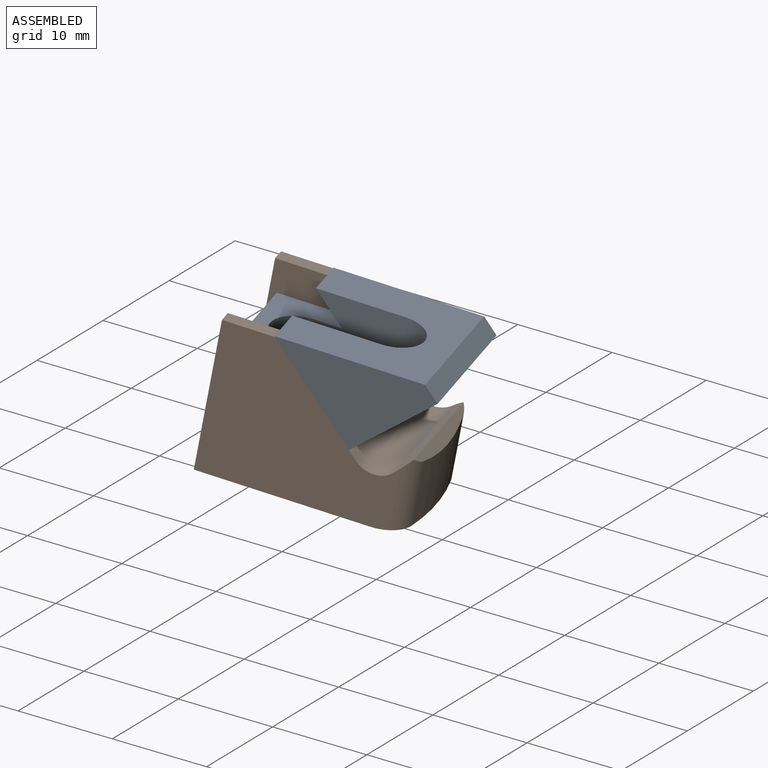
[diagram: assembled view]
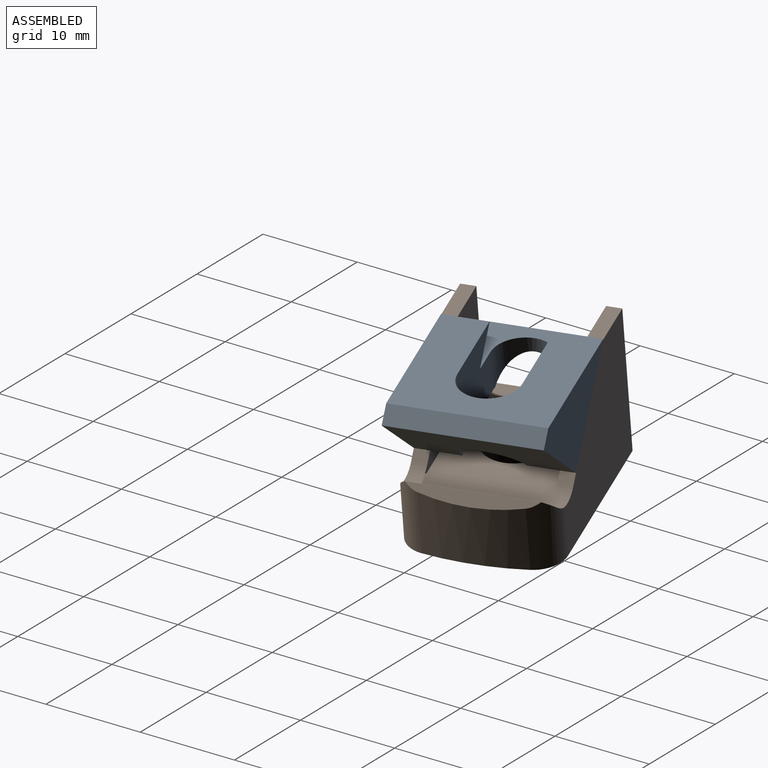
[diagram: assembled view, second angle]
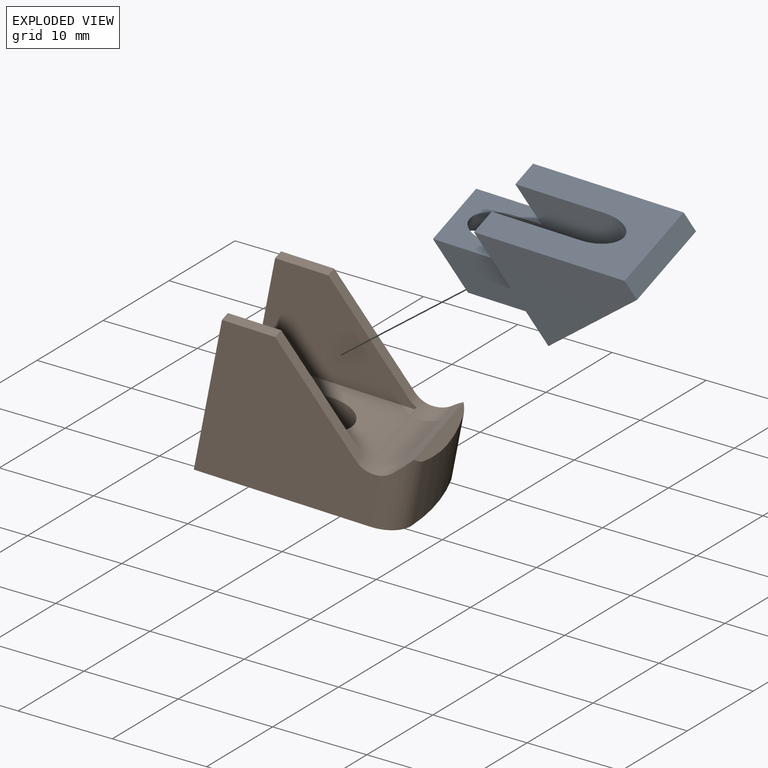
[diagram: exploded view]
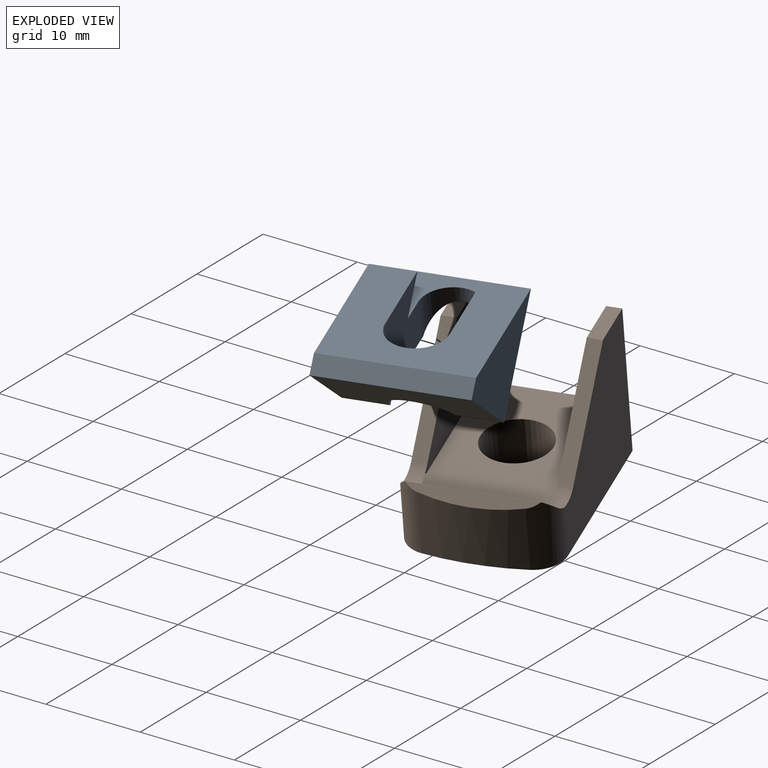
[diagram: exploded view, second angle]
ASSEMBLY  parts=2 mates=2
PART A: 19 faces, bbox 14.8x15x16.8 mm
  f0: plane 11x5.66mm, normal (0,0,1), area 45.7mm2, adj f5,f6,f7,f8,f9,f17
  f1: plane 15x10mm, normal (0.71,0,-0.71), area 147.9mm2, adj f3,f4,f10,f11,f12,f13,f14,f15
  f2: plane 15x10mm, normal (-1,0,0), area 131.2mm2, adj f3,f4,f10,f11,f12,f15
  f3: plane 12x4.52mm, normal (0,0,1), area 39.9mm2, adj f1,f2,f5,f6,f8,f12,f13,f15
  f4: plane 12x4.52mm, normal (0,0,1), area 39.9mm2, adj f1,f2,f5,f7,f9,f11,f14,f15
  f5: plane 11x5mm, normal (0.71,0,-0.71), area 47.7mm2, adj f0,f3,f4,f8,f9,f16,f17,f18
  f6: plane 5x5mm, normal (-0.71,0,0.71), area 17.7mm2, adj f0,f3,f8,f16,f17
  f7: plane 5x5mm, normal (-0.71,0,0.71), area 17.7mm2, adj f0,f4,f9,f17,f18
  f8: plane 10.66x5mm, normal (0,1,0), area 28.3mm2, adj f0,f3,f5,f6
  f9: plane 10.66x5mm, normal (0,-1,0), area 28.3mm2, adj f0,f4,f5,f7
  f10: plane 15x2mm, normal (0,0,-1), area 30mm2, adj f1,f2,f11,f12
  f11: plane 12x10mm, normal (0,-1,0), area 70mm2, adj f1,f2,f4,f10
  f12: plane 12x10mm, normal (0,1,0), area 70mm2, adj f1,f2,f3,f10
  f13: cylinder r=3mm len=0.49mm, axis (0.71,0,-0.71), area 0.1mm2, adj f1,f3,f16
  f14: cylinder r=3mm len=0.49mm, axis (0.71,0,-0.71), area 0.1mm2, adj f1,f4,f18
  f15: cylinder r=3mm len=8.12mm, axis (0.71,0,-0.71), area 63.3mm2, adj f1,f2,f3,f4,f16,f18
  f16: plane 11.56x10.61mm, normal (0,-1,0), area 53.4mm2, adj f1,f3,f5,f6,f13,f15,f17
  f17: cylinder r=3mm len=6mm, axis (0.71,0,-0.71), area 23.4mm2, adj f0,f5,f6,f7,f16,f18
  f18: plane 11.56x10.61mm, normal (0,1,0), area 53.4mm2, adj f1,f4,f5,f7,f14,f15,f17
PART B: 19 faces, bbox 20x15x15 mm
  f0: plane 14.52x1.23mm, normal (-0.71,0,0.71), area 23.9mm2, adj f1,f5,f17,f18
  f1: plane 12.58x1mm, normal (0.71,0,0.71), area 13.2mm2, adj f0,f16,f17,f18
  f2: plane 5x1.5mm, normal (0,0,1), area 7.5mm2, adj f3,f4,f7,f12
  f3: plane 15x15mm, normal (-1,0,0), area 105mm2, adj f2,f6,f7,f8,f9,f12,f13,f14
  f4: plane 9.23x9.23mm, normal (0.71,0,0.71), area 19.6mm2, adj f2,f5,f7,f12
  f5: cylinder r=2.5mm len=15mm, axis (0,1,0), area 47.5mm2, adj f0,f4,f6,f7,f10,f11,f12,f13
  f6: plane 16.59x15mm, normal (0,-1,0), area 183.2mm2, adj f3,f5,f8,f9,f10,f18
  f7: plane 16.59x15mm, normal (0,1,0), area 183.2mm2, adj f2,f3,f4,f5,f8,f17
  f8: plane 20x15mm, normal (0,0,-1), area 256.3mm2, adj f3,f6,f7,f15,f16,f17,f18
  f9: plane 5x1.5mm, normal (0,0,1), area 7.5mm2, adj f3,f6,f10,f13
  f10: plane 9.23x9.23mm, normal (0.71,0,0.71), area 19.6mm2, adj f5,f6,f9,f13
  f11: plane 12x0.24mm, normal (-1,0,0), area 2.9mm2, adj f5,f12,f13,f14
  f12: plane 15x10mm, normal (0,-1,0), area 100.1mm2, adj f2,f3,f4,f5,f11,f14
  f13: plane 15x10mm, normal (0,1,0), area 100.1mm2, adj f3,f5,f9,f10,f11,f14
  f14: plane 15x12mm, normal (0,0,1), area 143.7mm2, adj f3,f11,f12,f13,f15
  f15: cylinder r=3.4mm len=6.8mm, axis (0,0,1), area 106.8mm2, adj f8,f14
  f16: cylinder r=28mm len=10.08mm, axis (0,0,-1), area 62.4mm2, adj f1,f8,f17,f18
  f17: cylinder r=3mm len=7mm, axis (0,0,-1), area 25.9mm2, adj f0,f1,f5,f7,f8,f16
  f18: cylinder r=3mm len=7mm, axis (0,0,-1), area 25.9mm2, adj f0,f1,f5,f6,f8,f16
PLACE A rot(axis=(0.13,-0.99,0.07),125.5deg) t=(18.85,-4.59,26.52)mm
PLACE B rot(axis=(-0.07,0.55,0.83),18deg) t=(-2.93,-10.43,16.63)mm fixed
MATE planar A.f11 <-> B.f6  axis (0.26,-0.97,0) through (13.62,-13.76,26.33)mm
MATE planar A.f3 <-> B.f10  axis (-0.79,-0.21,-0.57) through (5.95,-2.25,26.02)mm
